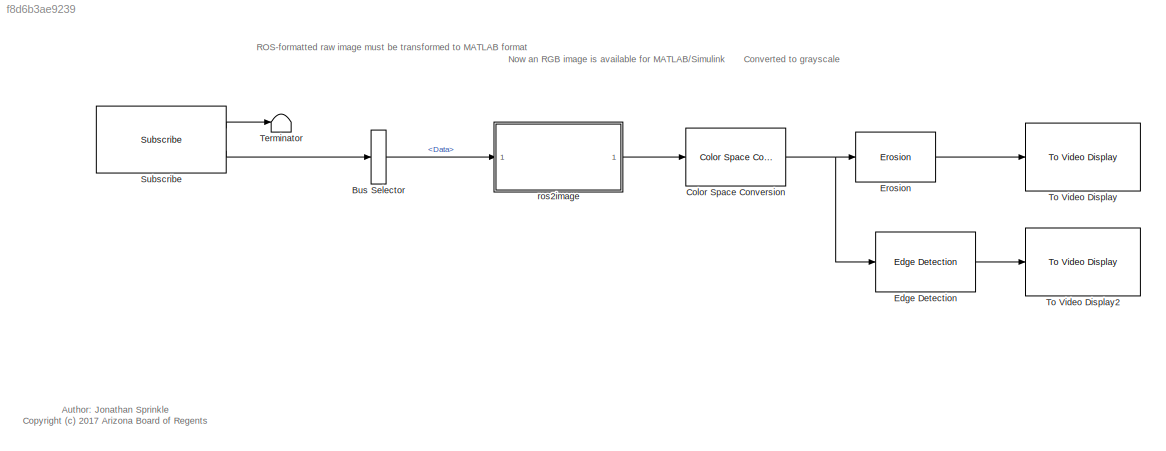
MODEL slx_f8d6b3ae9239
KIND model
CONFIG AbsTol = auto
CONFIG FixedStep = 0.2
CONFIG MaxStep = auto
CONFIG MinStep = auto
CONFIG RelTol = 1e-3
CONFIG SampleTimeConstraint = Unconstrained
CONFIG Solver = FixedStepAuto
CONFIG SolverMode = Auto
CONFIG SolverName = FixedStepAuto
CONFIG StartTime = 0.0
CONFIG StopTime = inf
WORKSPACE source: MAT-file member
WORKSPACE SL_ROS_VariableLengthArrays_MaxSizes: struct (value not decoded)
BLOCK [BusSelector] Bus Selector
  OutputSignals = Data
  Ports = [1, 1]
BLOCK [Reference] Color Space Conversion  REF=visionconversions/Color Space
 Conversion
  Ports = [1, 1]
  SourceBlock = visionconversions/Color Space\n Conversion
  SourceType = Color Space Conversion
BLOCK [Reference] Edge Detection  REF=visionanalysis/Edge Detection
  Ports = [1, 1]
  SourceBlock = visionanalysis/Edge Detection
  SourceType = Edge Detection
BLOCK [Reference] Erosion  REF=visionmorphops/Erosion
  Ports = [1, 1]
  SourceBlock = visionmorphops/Erosion
  SourceType = Erosion
BLOCK [Reference] Subscribe  REF=robotlib/Subscribe
  Ports = [0, 2]
  SourceBlock = robotlib/Subscribe
  SourceLibraryInfo = This block requires Robotics System Toolbox
  SourceType = ROS Subscribe
BLOCK [Terminator] Terminator
BLOCK [Reference] To Video Display  REF=visionsinks/To Video Display
  Ports = [1]
  SourceBlock = visionsinks/To Video Display
  SourceType = To Video Display
BLOCK [Reference] To Video Display2  REF=visionsinks/To Video Display
  Ports = [1]
  SourceBlock = visionsinks/To Video Display
  SourceType = To Video Display
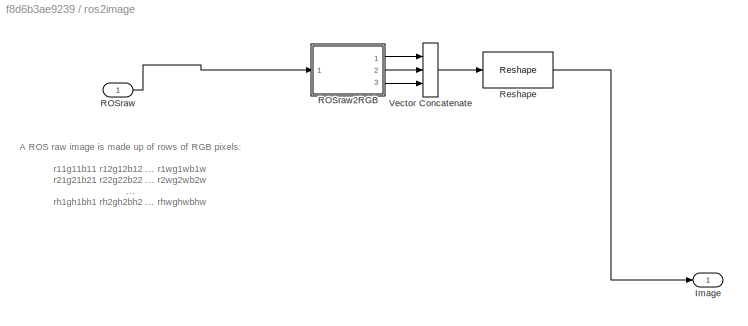
BLOCK [SubSystem] ros2image
  Ports = [1, 1]
  RequestExecContextInheritance = off
  Variant = off
BLOCK [Outport] ros2image/Image
  IconDisplay = Port number
BLOCK [Inport] ros2image/ROSraw
  IconDisplay = Port number
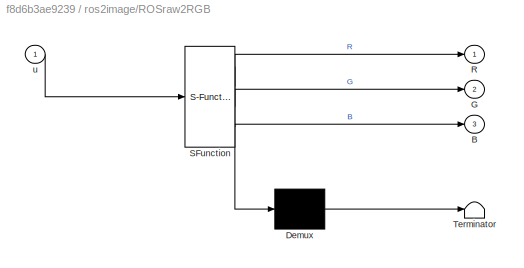
BLOCK [SubSystem] ros2image/ROSraw2RGB
  ErrorFcn = Stateflow.Translate.translate
  PermitHierarchicalResolution = ExplicitOnly
  Ports = [1, 3]
  RequestExecContextInheritance = off
  SFBlockType = MATLAB Function
  TreatAsAtomicUnit = on
  Variant = off
BLOCK [Demux] ros2image/ROSraw2RGB/ Demux 
  Outputs = 1
  Ports = [1, 1]
BLOCK [S-Function] ros2image/ROSraw2RGB/ SFunction 
  EnableBusSupport = on
  FunctionName = sf_sfun
  PortCounts = [1 4]
  Ports = [1, 4]
  SFunctionDeploymentMode = off
  Tag = Stateflow S-Function imageAcquisition 3
BLOCK [Terminator] ros2image/ROSraw2RGB/ Terminator 
BLOCK [Outport] ros2image/ROSraw2RGB/B
  IconDisplay = Port number
  Port = 3
BLOCK [Outport] ros2image/ROSraw2RGB/G
  IconDisplay = Port number
  Port = 2
BLOCK [Outport] ros2image/ROSraw2RGB/R
  IconDisplay = Port number
BLOCK [Inport] ros2image/ROSraw2RGB/u
  IconDisplay = Port number
BLOCK [Reshape] ros2image/Reshape
  OutputDimensionality = Customize
  OutputDimensions = [800,800,3]
  Ports = [1, 1]
BLOCK [Concatenate] ros2image/Vector Concatenate
  ConcatenateDimension = 2
  Mode = Multidimensional array
  NumInputs = 3
  Ports = [3, 1]
ANNOTATION (root): Author: Jonathan Sprinkle <copyright redacted>
ANNOTATION (root): Converted to grayscale
ANNOTATION (root): Now an RGB image is available for MATLAB/Simulink
ANNOTATION (root): ROS-formatted raw image must be transformed to MATLAB format
ANNOTATION ros2image: A ROS raw image is made up of rows of RGB pixels: r11g11b11 r12g12b12 ... r1wg1wb1w r21g21b21 r22g22b22 ... r2wg2wb2w ... rh1gh1bh1 rh2gh2bh2 ... rhwghwbhw This is a single stream of values, and we need to decompose it into a height x width x 3 matrix that Simulink uses. This subsystem takes care of extracting every 3rd element as R,G,B (the MATLAB function), then creating a 800x2400 matrix, and t...<+103ch>
LINE Bus Selector:1 -> ros2image:1
NET Color Space Conversion:1 -> Edge Detection:1, Erosion:1
LINE Edge Detection:1 -> To Video Display2:1
LINE Erosion:1 -> To Video Display:1
LINE Subscribe:1 -> Terminator:1
LINE Subscribe:2 -> Bus Selector:1
LINE ros2image/ROSraw2RGB:1 -> ros2image/Vector Concatenate:1
LINE ros2image/ROSraw2RGB:2 -> ros2image/Vector Concatenate:2
LINE ros2image/ROSraw2RGB:3 -> ros2image/Vector Concatenate:3
LINE ros2image/ROSraw:1 -> ros2image/ROSraw2RGB:1
LINE ros2image/Reshape:1 -> ros2image/Image:1
LINE ros2image/Vector Concatenate:1 -> ros2image/Reshape:1
LINE ros2image:1 -> Color Space Conversion:1
note: NET lines group one-source signal fan-out (src -> all destinations, sorted); 1:1 wires keep LINE
CHART ros2image/ROSraw2RGB states=1 transitions=1
  STATE_LABEL 'eML_blk_kernel()'
  STATE_LABEL "SCRIPT:\nfunction [R,G,B] = fcn(u)\n%#codegen\nRs = u(1:3:end);\nGs = u(2:3:end);\nBs = u(3:3:end);\nR = reshape(Rs,800,800)';\nG = reshape(Gs,800,800)';\nB = reshape(Bs,800,800)';\n\n"
